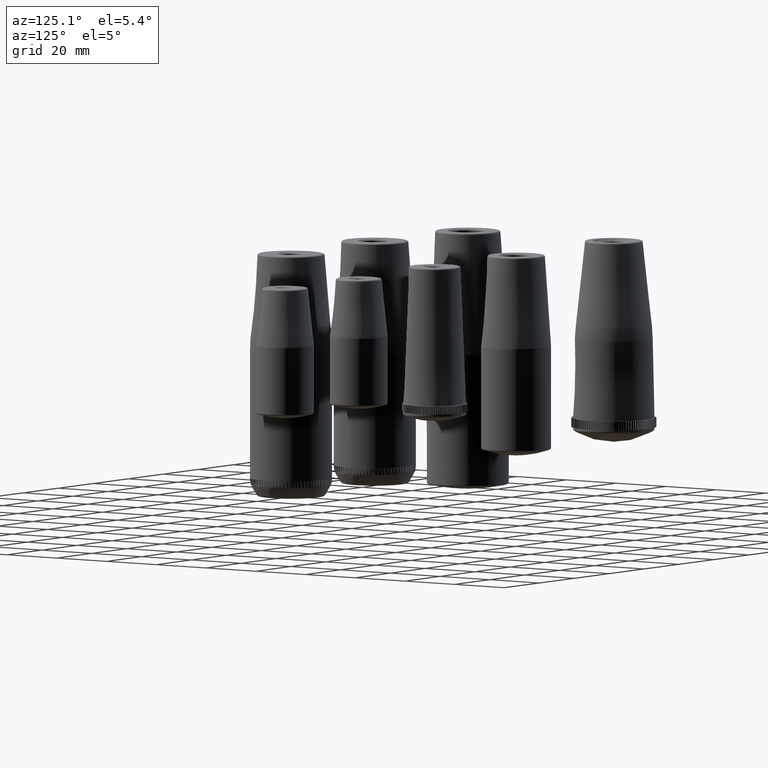
[diagram: clean part render]
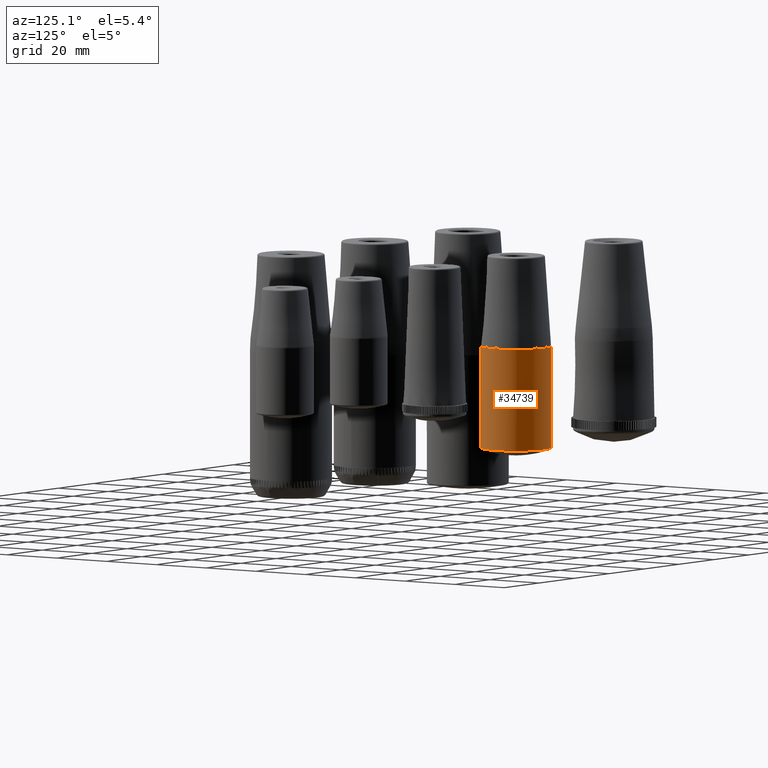
[diagram: same view with one face highlighted and labeled with its STEP entity id]
A machine part, auxiliary view. The second image highlights one B-rep face of the part: STEP entity #34739.
In plain terms, the highlighted cylindrical surface (bore or boss wall) has radius 11.5 mm, axis along (0, 0, -1).
Its self-contained STEP definition (entity closure, byte-faithful):
#5465=B_SPLINE_CURVE_WITH_KNOTS('',3,(#61633,#61634,#61635,#61636,#61637,
#61638,#61639,#61640,#61641,#61642,#61643,#61644,#61645,#61646,#61647),
 .UNSPECIFIED.,.T.,.F.,(4,1,1,1,1,1,1,1,1,1,1,1,4),(-3.14159265358979,-2.61799656608736,
-2.09440047858493,-1.57080439108249,-1.0472073444848,-0.523610297887113,
-1.32512894235326E-5,0.523584636104171,1.04718252349777,1.57078041089136,
2.09438449179084,2.61798857269032,3.14159265358979),.UNSPECIFIED.);
#6965=CYLINDRICAL_SURFACE('',#37981,11.5);
#7449=FACE_BOUND('',#10750,.T.);
#8508=FACE_OUTER_BOUND('',#10749,.T.);
#10749=EDGE_LOOP('',(#27939));
#10750=EDGE_LOOP('',(#27940));
#12992=CIRCLE('',#37982,11.5);
#15855=VERTEX_POINT('',#61631);
#15857=VERTEX_POINT('',#61733);
#20147=EDGE_CURVE('',#15855,#15855,#5465,.T.);
#20150=EDGE_CURVE('',#15857,#15857,#12992,.T.);
#27939=ORIENTED_EDGE('',*,*,#20150,.F.);
#27940=ORIENTED_EDGE('',*,*,#20147,.F.);
#34739=ADVANCED_FACE('',(#8508,#7449),#6965,.T.);
#37981=AXIS2_PLACEMENT_3D('',#61732,#45544,#45545);
#37982=AXIS2_PLACEMENT_3D('',#61734,#45546,#45547);
#45544=DIRECTION('center_axis',(0.,0.,-1.));
#45545=DIRECTION('ref_axis',(1.,0.,0.));
#45546=DIRECTION('center_axis',(0.,0.,1.));
#45547=DIRECTION('ref_axis',(1.,-1.22464679914735E-16,0.));
#61631=CARTESIAN_POINT('',(-11.5,0.,-63.6428038839026));
#61633=CARTESIAN_POINT('Ctrl Pts',(-11.5008241359288,0.000132234508827479,
-63.6428013095626));
#61634=CARTESIAN_POINT('Ctrl Pts',(-11.5008678177088,2.00697246014906,-63.6428013422509));
#61635=CARTESIAN_POINT('Ctrl Pts',(-10.4270775279229,6.02059237979735,-63.6428388432131));
#61636=CARTESIAN_POINT('Ctrl Pts',(-6.01883483177647,10.4250875873465,-63.6428354002225));
#61637=CARTESIAN_POINT('Ctrl Pts',(-1.54295062907513E-5,12.0386789276962,
-63.6427827210938));
#61638=CARTESIAN_POINT('Ctrl Pts',(6.01892833346532,10.4250284285338,-63.6428354301211));
#61639=CARTESIAN_POINT('Ctrl Pts',(10.4269161863997,6.02074529140365,-63.6428384813077));
#61640=CARTESIAN_POINT('Ctrl Pts',(12.0385117846958,-0.000325386089916996,
-63.6427824463535));
#61641=CARTESIAN_POINT('Ctrl Pts',(10.4252863399724,-6.01861806615409,-63.6428356867446));
#61642=CARTESIAN_POINT('Ctrl Pts',(6.02048749242452,-10.4272346190476,-63.6428387710338));
#61643=CARTESIAN_POINT('Ctrl Pts',(-5.49145030041773E-5,-12.0382795841103,
-63.6427821217652));
#61644=CARTESIAN_POINT('Ctrl Pts',(-6.0204569401109,-10.4273787641833,-63.6428390483689));
#61645=CARTESIAN_POINT('Ctrl Pts',(-10.425271904891,-6.01826260357541,-63.6428353049413));
#61646=CARTESIAN_POINT('Ctrl Pts',(-11.5007804534819,-2.00673862824102,
-63.6428012768739));
#61647=CARTESIAN_POINT('Ctrl Pts',(-11.5008241359288,0.000132234508827479,
-63.6428013095626));
#61732=CARTESIAN_POINT('Origin',(0.,0.,-30.));
#61733=CARTESIAN_POINT('',(-11.5,0.,-30.1023806240335));
#61734=CARTESIAN_POINT('Origin',(0.,0.,-30.1023806240335));